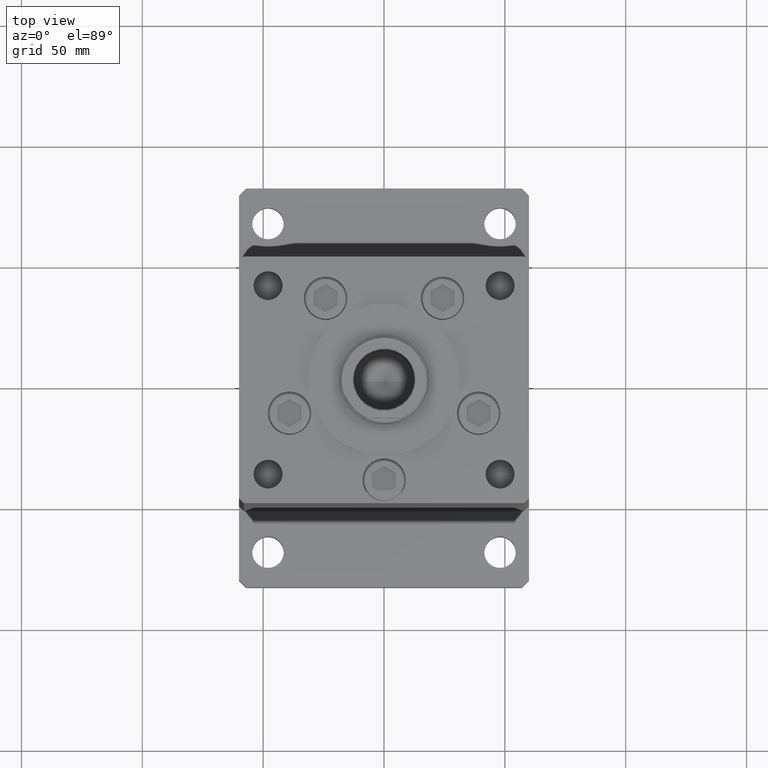
[diagram: clean part render]
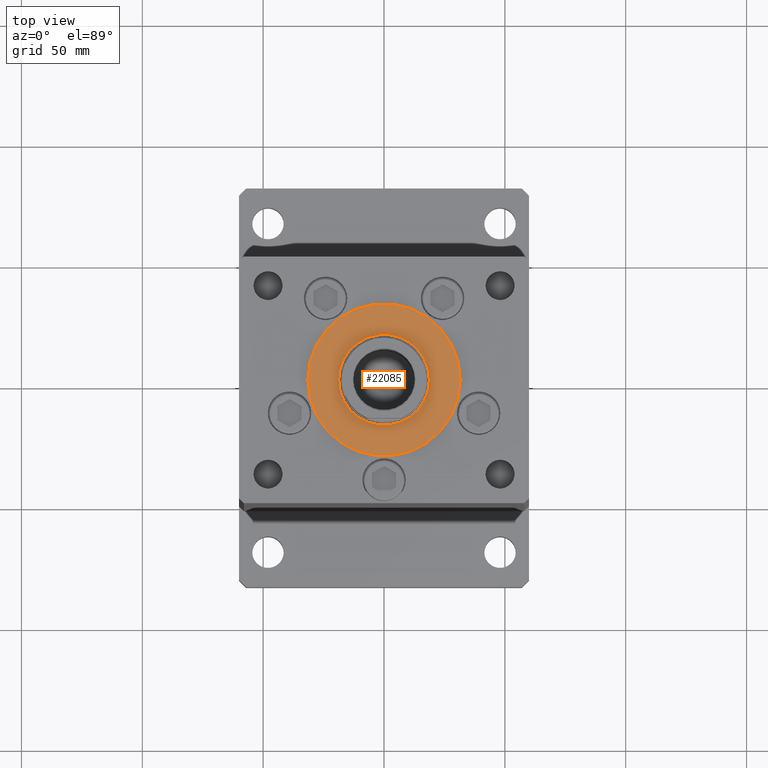
[diagram: same view with one face highlighted and labeled with its STEP entity id]
A machine part, top view. The second image highlights one B-rep face of the part: STEP entity #22085.
In plain terms, the highlighted planar face has unit normal (0, 0, 1).
Its self-contained STEP definition (entity closure, byte-faithful):
#582 = AXIS2_PLACEMENT_3D ( 'NONE', #44681, #33354, #49245 ) ;
#1722 = CIRCLE ( 'NONE', #5204, 31.50000000000000000 ) ;
#1798 = CARTESIAN_POINT ( 'NONE',  ( 0.000000000000000000, -6.938893903907228378E-15, 2.000000000000000000 ) ) ;
#4028 = DIRECTION ( 'NONE',  ( 0.000000000000000000, 0.000000000000000000, 1.000000000000000000 ) ) ;
#4881 = EDGE_LOOP ( 'NONE', ( #48336, #12990 ) ) ;
#5204 = AXIS2_PLACEMENT_3D ( 'NONE', #1798, #43848, #23349 ) ;
#5786 = AXIS2_PLACEMENT_3D ( 'NONE', #50917, #34483, #6431 ) ;
#6431 = DIRECTION ( 'NONE',  ( 1.000000000000000000, 0.000000000000000000, 0.000000000000000000 ) ) ;
#11848 = DIRECTION ( 'NONE',  ( 0.000000000000000000, 0.000000000000000000, 1.000000000000000000 ) ) ;
#12549 = VERTEX_POINT ( 'NONE', #39485 ) ;
#12990 = ORIENTED_EDGE ( 'NONE', *, *, #25240, .F. ) ;
#14617 = ORIENTED_EDGE ( 'NONE', *, *, #16474, .T. ) ;
#16391 = ORIENTED_EDGE ( 'NONE', *, *, #34502, .T. ) ;
#16474 = EDGE_CURVE ( 'NONE', #32993, #40784, #23820, .T. ) ;
#17207 = EDGE_CURVE ( 'NONE', #45846, #12549, #34197, .T. ) ;
#19546 = AXIS2_PLACEMENT_3D ( 'NONE', #28815, #11848, #45266 ) ;
#20484 = DIRECTION ( 'NONE',  ( 1.000000000000000000, 0.000000000000000000, -0.000000000000000000 ) ) ;
#22020 = AXIS2_PLACEMENT_3D ( 'NONE', #24514, #4028, #20484 ) ;
#22085 = ADVANCED_FACE ( 'NONE', ( #49053, #45010 ), #28564, .T. ) ;
#23349 = DIRECTION ( 'NONE',  ( 1.000000000000000000, 0.000000000000000000, 0.000000000000000000 ) ) ;
#23820 = CIRCLE ( 'NONE', #582, 31.50000000000000000 ) ;
#24514 = CARTESIAN_POINT ( 'NONE',  ( 0.000000000000000000, -6.938893903907228378E-15, 2.000000000000000000 ) ) ;
#25240 = EDGE_CURVE ( 'NONE', #12549, #45846, #46238, .T. ) ;
#27843 = CARTESIAN_POINT ( 'NONE',  ( 31.50000000000000000, -3.081256486593065689E-15, 2.000000000000000000 ) ) ;
#27881 = CARTESIAN_POINT ( 'NONE',  ( -31.50000000000000000, -6.938893903907228378E-15, 2.000000000000000000 ) ) ;
#28564 = PLANE ( 'NONE',  #22020 ) ;
#28815 = CARTESIAN_POINT ( 'NONE',  ( 0.000000000000000000, -6.938893903907228378E-15, 2.000000000000000000 ) ) ;
#29885 = EDGE_LOOP ( 'NONE', ( #14617, #16391 ) ) ;
#32993 = VERTEX_POINT ( 'NONE', #27881 ) ;
#33354 = DIRECTION ( 'NONE',  ( 0.000000000000000000, 0.000000000000000000, 1.000000000000000000 ) ) ;
#34197 = CIRCLE ( 'NONE', #5786, 18.75000000000000355 ) ;
#34483 = DIRECTION ( 'NONE',  ( 0.000000000000000000, 0.000000000000000000, 1.000000000000000000 ) ) ;
#34502 = EDGE_CURVE ( 'NONE', #40784, #32993, #1722, .T. ) ;
#37456 = CARTESIAN_POINT ( 'NONE',  ( 18.75000000000000355, -6.938893903907228378E-15, 2.000000000000000000 ) ) ;
#39485 = CARTESIAN_POINT ( 'NONE',  ( -18.75000000000000355, -4.642681155505941194E-15, 2.000000000000000000 ) ) ;
#40784 = VERTEX_POINT ( 'NONE', #27843 ) ;
#43848 = DIRECTION ( 'NONE',  ( 0.000000000000000000, 0.000000000000000000, 1.000000000000000000 ) ) ;
#44681 = CARTESIAN_POINT ( 'NONE',  ( 0.000000000000000000, -6.938893903907228378E-15, 2.000000000000000000 ) ) ;
#45010 = FACE_OUTER_BOUND ( 'NONE', #29885, .T. ) ;
#45266 = DIRECTION ( 'NONE',  ( 1.000000000000000000, 0.000000000000000000, 0.000000000000000000 ) ) ;
#45846 = VERTEX_POINT ( 'NONE', #37456 ) ;
#46238 = CIRCLE ( 'NONE', #19546, 18.75000000000000355 ) ;
#48336 = ORIENTED_EDGE ( 'NONE', *, *, #17207, .F. ) ;
#49053 = FACE_BOUND ( 'NONE', #4881, .T. ) ;
#49245 = DIRECTION ( 'NONE',  ( 1.000000000000000000, 0.000000000000000000, 0.000000000000000000 ) ) ;
#50917 = CARTESIAN_POINT ( 'NONE',  ( 0.000000000000000000, -6.938893903907228378E-15, 2.000000000000000000 ) ) ;